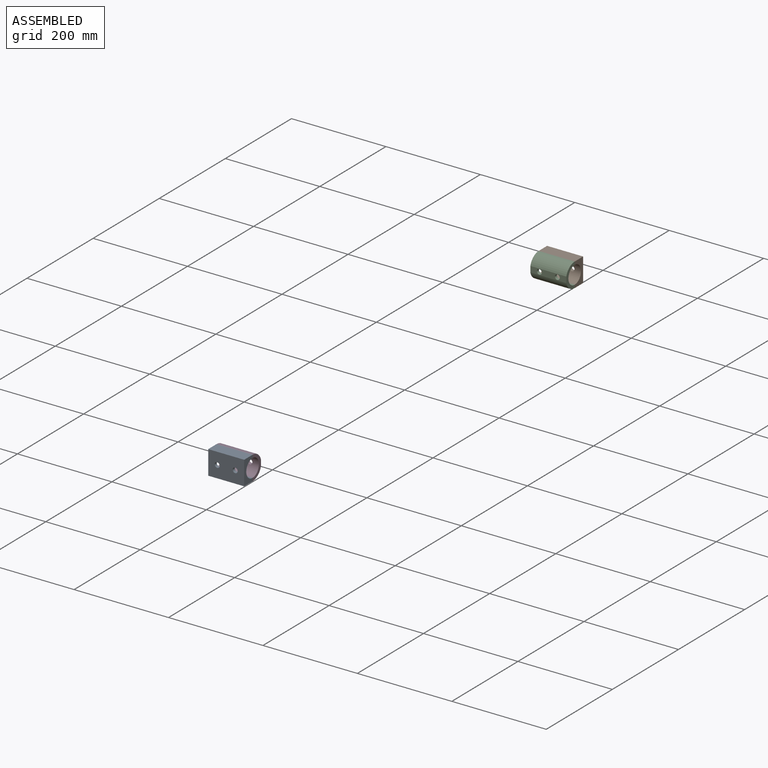
[diagram: assembled view]
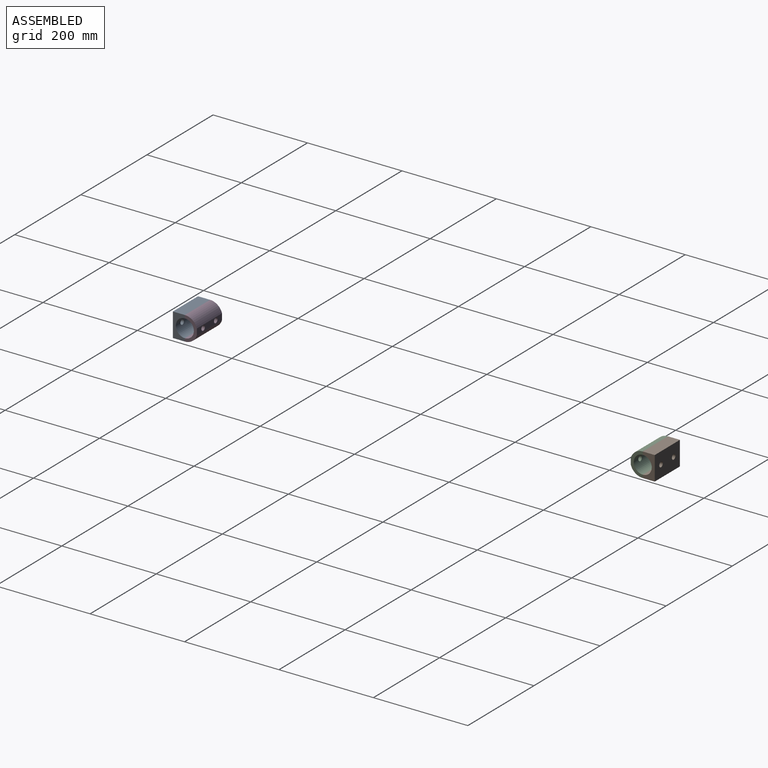
[diagram: assembled view, second angle]
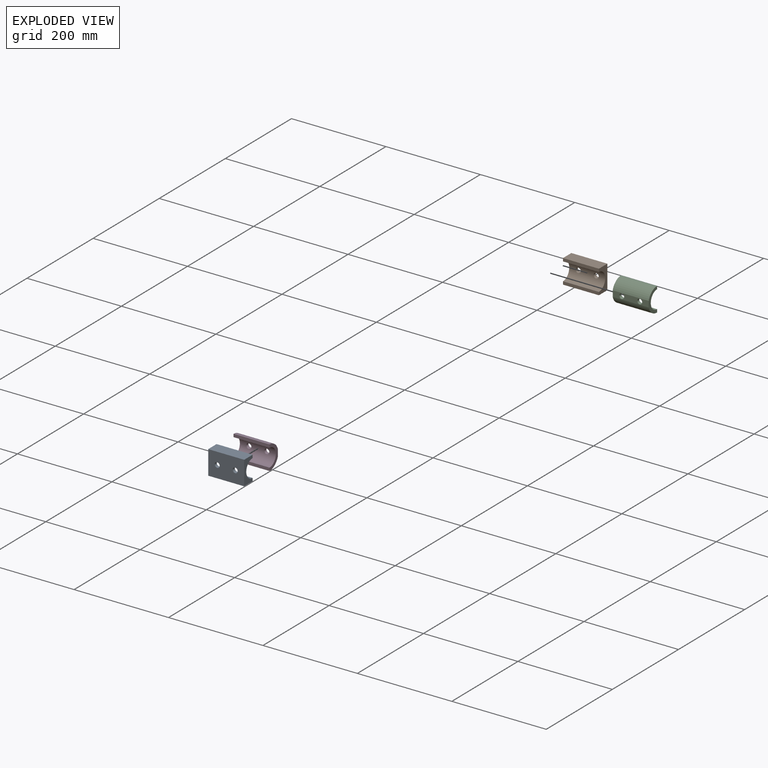
[diagram: exploded view]
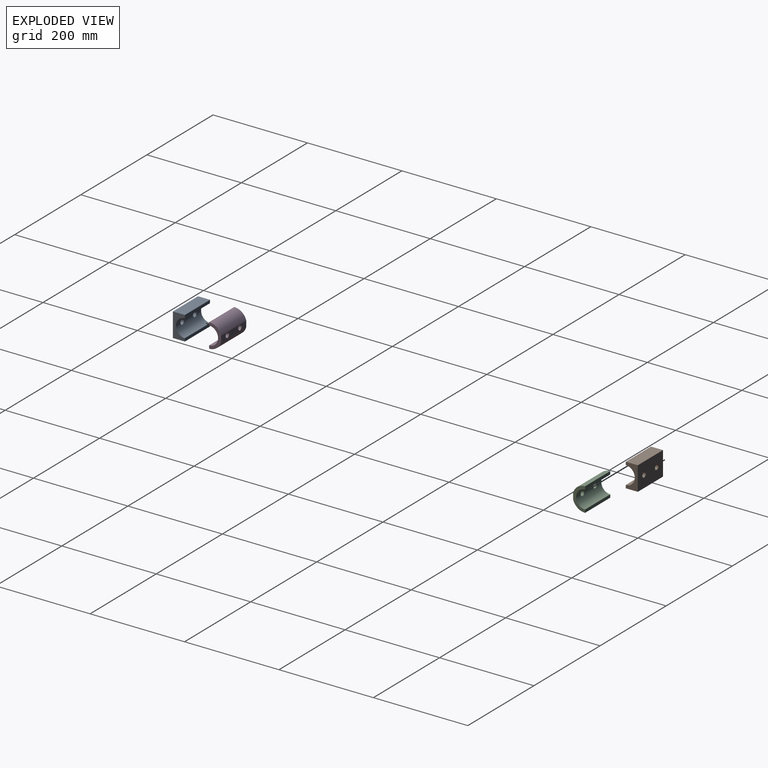
[diagram: exploded view, second angle]
ASSEMBLY  parts=4 mates=2
PART A: 10 faces, bbox 25.4x76.2x50.8 mm
  f0: plane 76.2x6.36mm, normal (-1,0,0), area 484.8mm2, adj f1,f5,f6,f7
  f1: cylinder r=19.04mm len=76.2mm, axis (0,1,0), area 4384.2mm2, adj f0,f2,f6,f7,f8,f9
  f2: plane 76.2x6.36mm, normal (-1,0,0), area 484.8mm2, adj f1,f3,f6,f7
  f3: plane 76.2x25.39mm, normal (0,0,-1), area 1935mm2, adj f2,f4,f6,f7
  f4: plane 76.2x50.81mm, normal (1,0,0), area 3698.7mm2, adj f3,f5,f6,f7,f8,f9
  f5: plane 76.2x25.39mm, normal (0,0,1), area 1935mm2, adj f0,f4,f6,f7
  f6: plane 50.81x25.39mm, normal (0,-1,0), area 720.6mm2, adj f0,f1,f2,f3,f4,f5
  f7: plane 50.81x25.39mm, normal (0,1,0), area 720.6mm2, adj f0,f1,f2,f3,f4,f5
  f8: cylinder r=5.25mm len=10.5mm, axis (1,0,0), area 221.5mm2, adj f1,f4
  f9: cylinder r=5.25mm len=10.5mm, axis (1,0,0), area 221.5mm2, adj f1,f4
PART B: same geometry as A
PART C: 10 faces, bbox 25.4x76.2x50.8 mm
  f0: cylinder r=26.11mm len=76.2mm, axis (0,1,0), area 2600.2mm2, adj f1,f5,f6,f7
  f1: plane 76.2x6.36mm, normal (1,0,0), area 484.8mm2, adj f0,f2,f6,f7
  f2: cylinder r=19.04mm len=76.2mm, axis (0,1,0), area 4384.2mm2, adj f1,f3,f6,f7,f8,f9
  f3: plane 76.2x6.36mm, normal (1,0,0), area 484.8mm2, adj f2,f4,f6,f7
  f4: cylinder r=26.11mm len=76.2mm, axis (0,1,0), area 2600.5mm2, adj f3,f5,f6,f7
  f5: plane 76.2x12.71mm, normal (-1,0,0), area 794.9mm2, adj f0,f4,f6,f7,f8,f9
  f6: plane 50.82x25.39mm, normal (0,-1,0), area 469.6mm2, adj f0,f1,f2,f3,f4,f5
  f7: plane 50.82x25.39mm, normal (0,1,0), area 469.6mm2, adj f0,f1,f2,f3,f4,f5
  f8: cylinder r=5.25mm len=10.5mm, axis (-1,0,0), area 221.6mm2, adj f2,f5
  f9: cylinder r=5.25mm len=10.5mm, axis (-1,0,0), area 221.6mm2, adj f2,f5
PART D: same geometry as C
PLACE A rot(axis=(0,0,-1),90deg) t=(-981.51,-486.49,36.52)mm
PLACE B rot(axis=(0,0,1),90deg) t=(-1055.57,484.83,35.83)mm
PLACE C rot(axis=(0,0,1),90deg) t=(-1055.57,484.83,35.83)mm
PLACE D rot(axis=(0,0,-1),90deg) t=(-981.51,-486.49,36.52)mm
MATE fastened B.f0 <-> C.f3  axis (0,-1,0) through (-1017.47,484.83,58.06)mm
MATE fastened A.f0 <-> D.f3  axis (0,1,0) through (-1019.61,-486.49,58.74)mm
